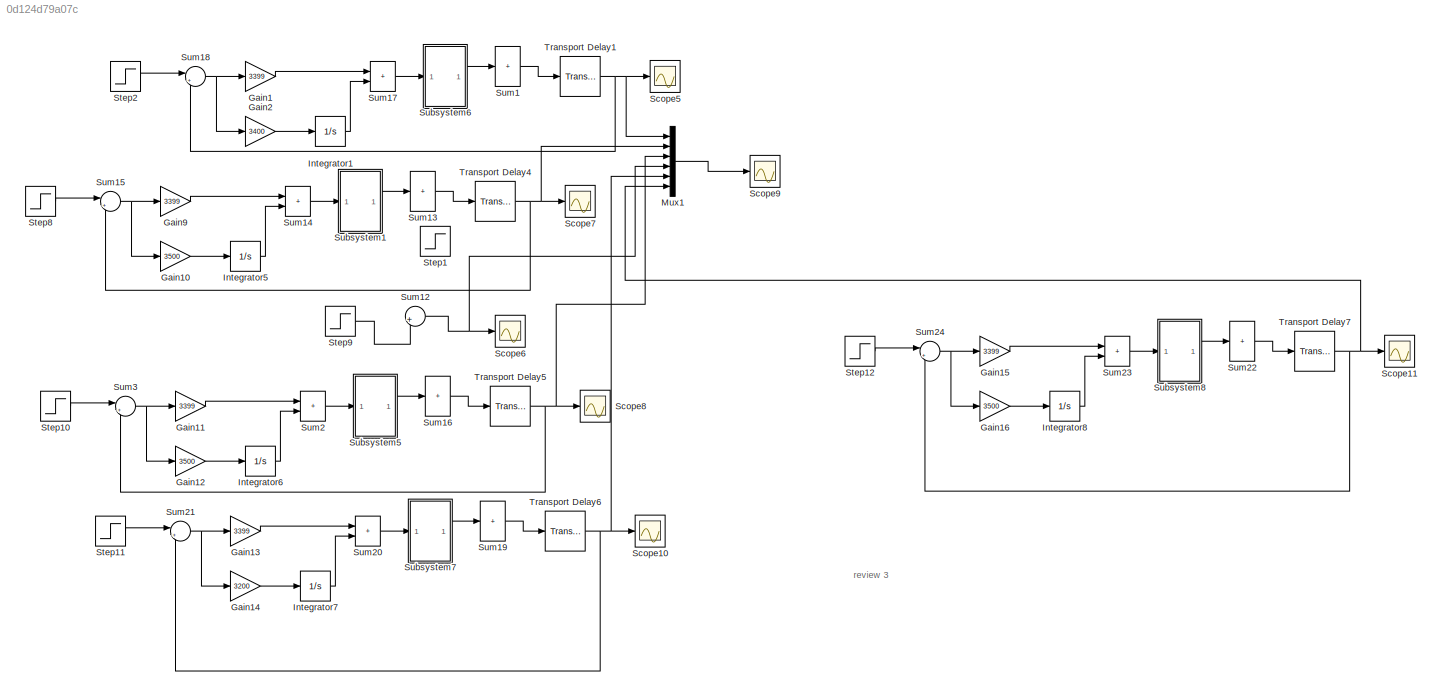
MODEL slx_0d124d79a07c
KIND model
CONFIG AbsTol = auto
CONFIG EnableMultiTasking = off
CONFIG FixedStep = auto
CONFIG MaxStep = auto
CONFIG MinStep = auto
CONFIG RelTol = 1e-3
CONFIG SampleTimeConstraint = Unconstrained
CONFIG SolverName = VariableStepAuto
CONFIG StartTime = 0.0
CONFIG StopTime = 2500
BLOCK [Gain] Gain1
  Gain = 3399
BLOCK [Gain] Gain10
  Gain = 3500
BLOCK [Gain] Gain11
  Gain = 3399
BLOCK [Gain] Gain12
  Gain = 3500
BLOCK [Gain] Gain13
  Gain = 3399
BLOCK [Gain] Gain14
  Gain = 3200
BLOCK [Gain] Gain15
  Gain = 3399
BLOCK [Gain] Gain16
  Gain = 3500
BLOCK [Gain] Gain2
  Gain = 3400
BLOCK [Gain] Gain9
  Gain = 3399
BLOCK [Integrator] Integrator1
  Ports = [1, 1]
BLOCK [Integrator] Integrator5
  Ports = [1, 1]
BLOCK [Integrator] Integrator6
  Ports = [1, 1]
BLOCK [Integrator] Integrator7
  Ports = [1, 1]
BLOCK [Integrator] Integrator8
  Ports = [1, 1]
BLOCK [Mux] Mux1
  DisplayOption = bar
  Inputs = 6
  Ports = [6, 1]
BLOCK [Scope] Scope10
  Floating = off
  NumInputPorts = 1
  Ports = [1]
  ScopeSpecificationString = Simulink.scopes.TimeScopeBlockCfg('CurrentConfiguration', extmgr.ConfigurationSet(extmgr.Configuration('Core','General UI',true,'FigureColor',[1 1 1]),extmgr.Configuration('Core','Source UI',true),extmgr.Configuration('Sources','WiredSimulink',true,'DataLoggingVariableName','ScopeData7'),extmgr.Configuration('Visuals','Time Domain',true,'SerializedDisplays',{struct('MinYLimReal','414.5067','MaxYLi...<+1611ch>
BLOCK [Scope] Scope11
  Floating = off
  NumInputPorts = 1
  Ports = [1]
  ScopeSpecificationString = Simulink.scopes.TimeScopeBlockCfg('CurrentConfiguration', extmgr.ConfigurationSet(extmgr.Configuration('Core','General UI',true,'FigureColor',[1 1 1]),extmgr.Configuration('Core','Source UI',true),extmgr.Configuration('Sources','WiredSimulink',true,'DataLoggingVariableName','ScopeData8'),extmgr.Configuration('Visuals','Time Domain',true,'SerializedDisplays',{struct('MinYLimReal','414.52429','MaxYL...<+1615ch>
BLOCK [Scope] Scope5
  Floating = off
  NumInputPorts = 1
  Ports = [1]
  ScopeSpecificationString = Simulink.scopes.TimeScopeBlockCfg('CurrentConfiguration', extmgr.ConfigurationSet(extmgr.Configuration('Core','General UI',true,'FigureColor',[1 1 1]),extmgr.Configuration('Core','Source UI',true),extmgr.Configuration('Sources','WiredSimulink',true,'DataLoggingVariableName','ScopeData2'),extmgr.Configuration('Visuals','Time Domain',true,'SerializedDisplays',{struct('MinYLimReal','413.8806','MaxYLi...<+1585ch>
BLOCK [Scope] Scope6
  Floating = off
  NumInputPorts = 1
  Ports = [1]
  ScopeSpecificationString = Simulink.scopes.TimeScopeBlockCfg('CurrentConfiguration', extmgr.ConfigurationSet(extmgr.Configuration('Core','General UI',true),extmgr.Configuration('Core','Source UI',true),extmgr.Configuration('Sources','WiredSimulink',true,'DataLoggingVariableName','ScopeData3'),extmgr.Configuration('Visuals','Time Domain',true,'SerializedDisplays',{struct('MinYLimReal','414.625','MaxYLimReal','418.375','YLabe...<+1362ch>
BLOCK [Scope] Scope7
  Floating = off
  NumInputPorts = 1
  Ports = [1]
  ScopeSpecificationString = Simulink.scopes.TimeScopeBlockCfg('CurrentConfiguration', extmgr.ConfigurationSet(extmgr.Configuration('Core','General UI',true,'FigureColor',[1 1 1]),extmgr.Configuration('Core','Source UI',true),extmgr.Configuration('Sources','WiredSimulink',true,'DataLoggingVariableName','ScopeData4'),extmgr.Configuration('Visuals','Time Domain',true,'SerializedDisplays',{struct('MinYLimReal','417.55907','MaxYL...<+1590ch>
BLOCK [Scope] Scope8
  Floating = off
  NumInputPorts = 1
  Ports = [1]
  ScopeSpecificationString = Simulink.scopes.TimeScopeBlockCfg('CurrentConfiguration', extmgr.ConfigurationSet(extmgr.Configuration('Core','General UI',true,'FigureColor',[1 1 1]),extmgr.Configuration('Core','Source UI',true),extmgr.Configuration('Sources','WiredSimulink',true,'DataLoggingVariableName','ScopeData5'),extmgr.Configuration('Visuals','Time Domain',true,'SerializedDisplays',{struct('MinYLimReal','414.40204','MaxYL...<+1615ch>
BLOCK [Scope] Scope9
  Floating = off
  NumInputPorts = 1
  Ports = [1]
  ScopeSpecificationString = Simulink.scopes.TimeScopeBlockCfg('CurrentConfiguration', extmgr.ConfigurationSet(extmgr.Configuration('Core','General UI',true),extmgr.Configuration('Core','Source UI',true),extmgr.Configuration('Sources','WiredSimulink',true,'DataLoggingVariableName','ScopeData6'),extmgr.Configuration('Visuals','Time Domain',true,'SerializedDisplays',{struct('MinYLimReal','414.39237','MaxYLimReal','420.25815','Y...<+1544ch>
BLOCK [Step] Step1
  After = -0.2
  SampleTime = 0
  Time = 400
BLOCK [Step] Step10
  After = 418
  Before = 415
  SampleTime = 0
  Time = 70
BLOCK [Step] Step11
  After = 418
  Before = 415
  SampleTime = 0
  Time = 70
BLOCK [Step] Step12
  After = 418
  Before = 415
  SampleTime = 0
  Time = 70
BLOCK [Step] Step2
  After = 418
  Before = 415
  SampleTime = 0
  Time = 70
BLOCK [Step] Step8
  After = 418
  Before = 415
  SampleTime = 0
  Time = 70
BLOCK [Step] Step9
  After = 418
  Before = 415
  SampleTime = 0
  Time = 70
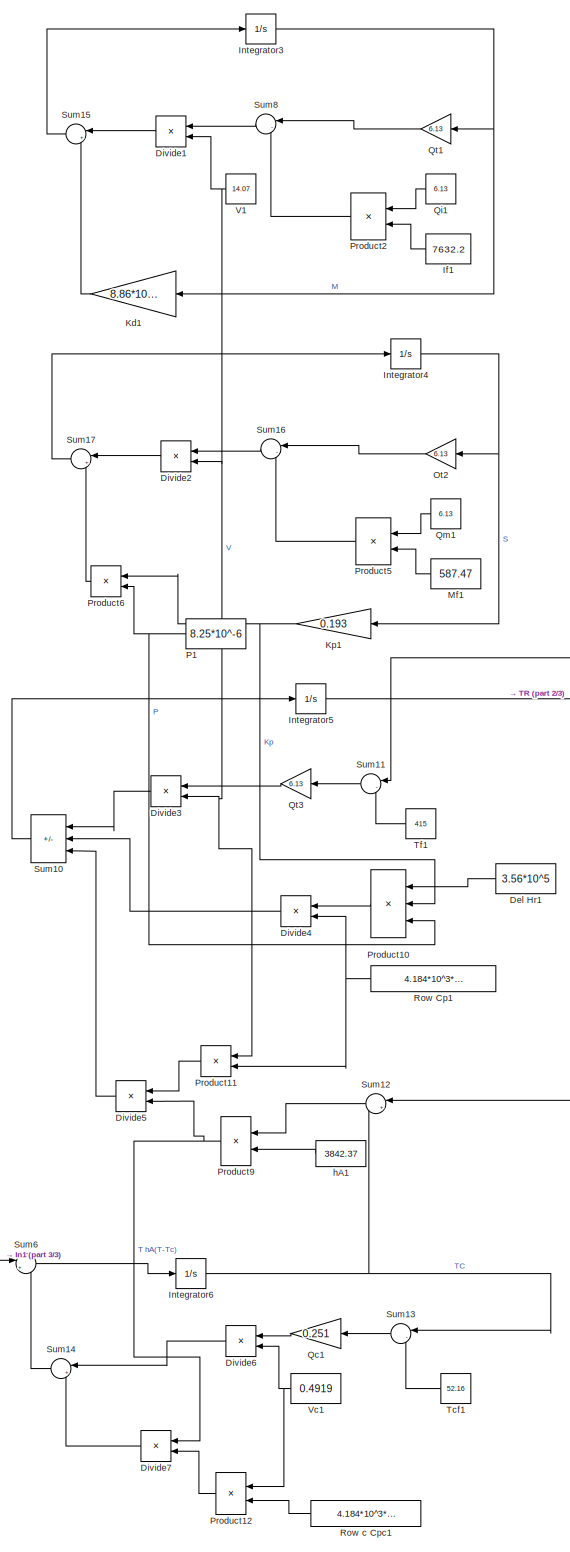
[diagram: Subsystem1 - part 1/3, center side, full height]
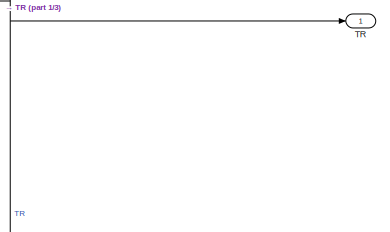
[diagram: Subsystem1 - part 2/3, middle right region]
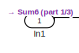
[diagram: Subsystem1 - part 3/3, bottom left region]
BLOCK [SubSystem] Subsystem1
  Ports = [1, 1]
  RequestExecContextInheritance = off
BLOCK [Constant] Subsystem1/Del Hr1
  NameLocation = top
  Value = 3.56*10^5
BLOCK [Product] Subsystem1/Divide1
  Inputs = */
  NameLocation = top
  Ports = [2, 1]
BLOCK [Product] Subsystem1/Divide2
  Inputs = */
  NameLocation = top
  Ports = [2, 1]
BLOCK [Product] Subsystem1/Divide3
  Inputs = */
  NameLocation = top
  Ports = [2, 1]
BLOCK [Product] Subsystem1/Divide4
  Inputs = */
  NameLocation = top
  Ports = [2, 1]
BLOCK [Product] Subsystem1/Divide5
  Inputs = /*
  NameLocation = top
  Ports = [2, 1]
BLOCK [Product] Subsystem1/Divide6
  Inputs = */
  NameLocation = top
  Ports = [2, 1]
BLOCK [Product] Subsystem1/Divide7
  Inputs = */
  NameLocation = top
  Ports = [2, 1]
BLOCK [Constant] Subsystem1/If1
  NameLocation = top
  Value = 7632.2
BLOCK [Inport] Subsystem1/In1
BLOCK [Integrator] Subsystem1/Integrator3
  InitialCondition = 7632.2
  Ports = [1, 1]
BLOCK [Integrator] Subsystem1/Integrator4
  InitialCondition = 587.47
  Ports = [1, 1]
BLOCK [Integrator] Subsystem1/Integrator5
  InitialCondition = 415
  Ports = [1, 1]
BLOCK [Integrator] Subsystem1/Integrator6
  InitialCondition = 326
  Ports = [1, 1]
BLOCK [Gain] Subsystem1/Kd1
  Gain = 8.86*10^-20
  NameLocation = top
BLOCK [Gain] Subsystem1/Kp1
  Gain = 0.193
  NameLocation = top
BLOCK [Constant] Subsystem1/Mf1
  NameLocation = top
  Value = 587.47
BLOCK [Gain] Subsystem1/Ot2
  Gain = 6.13
  NameLocation = top
BLOCK [Constant] Subsystem1/P1
  NameLocation = top
  Value = 8.25*10^-6
BLOCK [Product] Subsystem1/Product10
  Inputs = 3
  NameLocation = top
  Ports = [3, 1]
BLOCK [Product] Subsystem1/Product11
  NameLocation = top
  Ports = [2, 1]
BLOCK [Product] Subsystem1/Product12
  NameLocation = top
  Ports = [2, 1]
BLOCK [Product] Subsystem1/Product2
  NameLocation = top
  Ports = [2, 1]
BLOCK [Product] Subsystem1/Product5
  NameLocation = top
  Ports = [2, 1]
BLOCK [Product] Subsystem1/Product6
  NameLocation = top
  Ports = [2, 1]
BLOCK [Product] Subsystem1/Product9
  NameLocation = top
  Ports = [2, 1]
BLOCK [Gain] Subsystem1/Qc1
  Gain = 0.251
  NameLocation = top
BLOCK [Constant] Subsystem1/Qi1
  NameLocation = top
  Value = 6.13
BLOCK [Constant] Subsystem1/Qm1
  NameLocation = top
  Value = 6.13
BLOCK [Gain] Subsystem1/Qt1
  Gain = 6.13
  NameLocation = top
BLOCK [Gain] Subsystem1/Qt3
  Gain = 6.13
  NameLocation = top
BLOCK [Constant] Subsystem1/Row Cp1
  NameLocation = top
  Value = 4.184*10^3*858.085
BLOCK [Constant] Subsystem1/Row c Cpc1
  NameLocation = top
  Value = 4.184*10^3*858.085
BLOCK [Sum] Subsystem1/Sum10
  IconShape = rectangular
  Inputs = |++-
  NameLocation = top
  Ports = [3, 1]
BLOCK [Sum] Subsystem1/Sum11
  Inputs = |-+
  NameLocation = top
  Ports = [2, 1]
BLOCK [Sum] Subsystem1/Sum12
  Inputs = |+-
  NameLocation = top
  Ports = [2, 1]
BLOCK [Sum] Subsystem1/Sum13
  Inputs = |-+
  NameLocation = top
  Ports = [2, 1]
BLOCK [Sum] Subsystem1/Sum14
  Inputs = |++
  NameLocation = top
  Ports = [2, 1]
BLOCK [Sum] Subsystem1/Sum15
  Inputs = |+-
  NameLocation = top
  Ports = [2, 1]
BLOCK [Sum] Subsystem1/Sum16
  Inputs = |-+
  NameLocation = top
  Ports = [2, 1]
BLOCK [Sum] Subsystem1/Sum17
  Inputs = |+-
  NameLocation = top
  Ports = [2, 1]
BLOCK [Sum] Subsystem1/Sum6
  Inputs = |++
  Ports = [2, 1]
BLOCK [Sum] Subsystem1/Sum8
  Inputs = |-+
  NameLocation = top
  Ports = [2, 1]
BLOCK [Outport] Subsystem1/TR
BLOCK [Constant] Subsystem1/Tcf1
  NameLocation = top
  Value = 52.16
BLOCK [Constant] Subsystem1/Tf1
  NameLocation = top
  Value = 415
BLOCK [Constant] Subsystem1/V1
  NameLocation = top
  Value = 14.07
BLOCK [Constant] Subsystem1/Vc1
  NameLocation = top
  Value = 0.4919
BLOCK [Constant] Subsystem1/hA1
  NameLocation = top
  Value = 3842.37
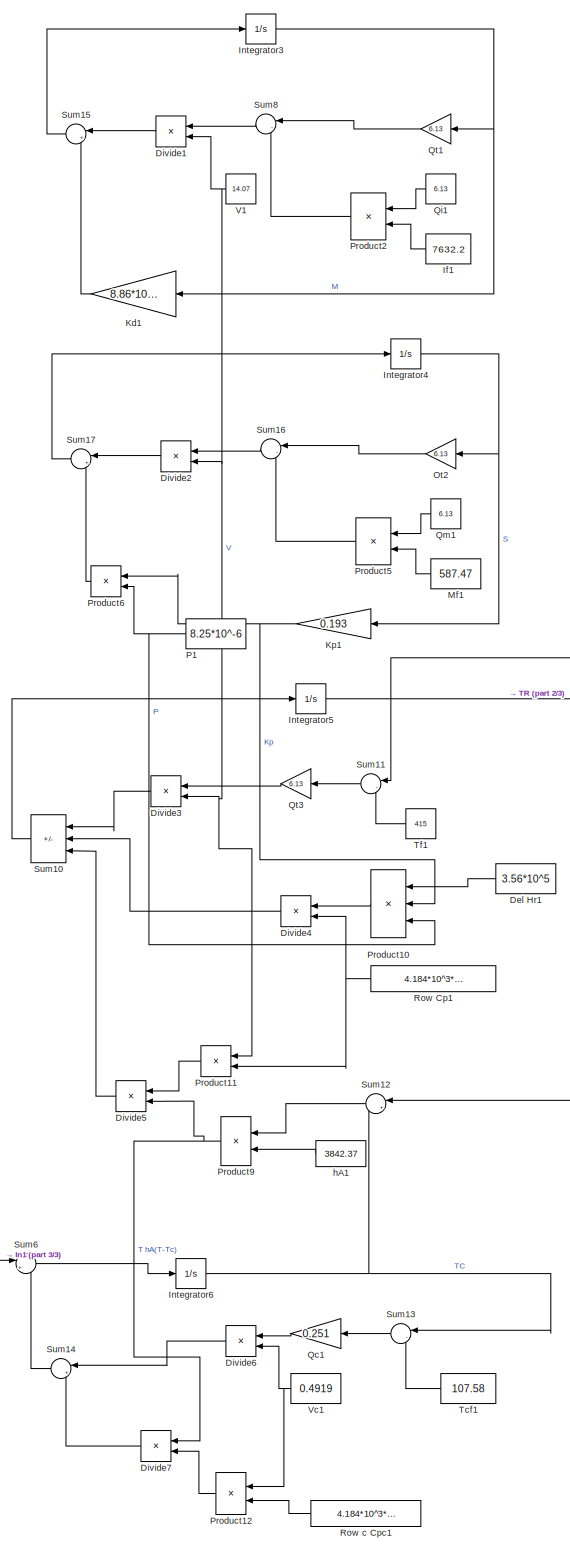
[diagram: Subsystem5 - part 1/3, center side, full height]
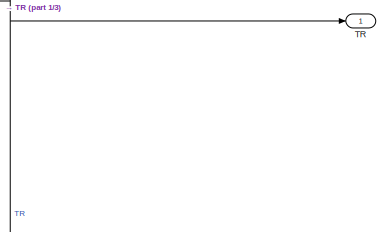
[diagram: Subsystem5 - part 2/3, middle right region]
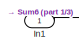
[diagram: Subsystem5 - part 3/3, bottom left region]
BLOCK [SubSystem] Subsystem5
  Ports = [1, 1]
  RequestExecContextInheritance = off
BLOCK [Constant] Subsystem5/Del Hr1
  NameLocation = top
  Value = 3.56*10^5
BLOCK [Product] Subsystem5/Divide1
  Inputs = */
  NameLocation = top
  Ports = [2, 1]
BLOCK [Product] Subsystem5/Divide2
  Inputs = */
  NameLocation = top
  Ports = [2, 1]
BLOCK [Product] Subsystem5/Divide3
  Inputs = */
  NameLocation = top
  Ports = [2, 1]
BLOCK [Product] Subsystem5/Divide4
  Inputs = */
  NameLocation = top
  Ports = [2, 1]
BLOCK [Product] Subsystem5/Divide5
  Inputs = /*
  NameLocation = top
  Ports = [2, 1]
BLOCK [Product] Subsystem5/Divide6
  Inputs = */
  NameLocation = top
  Ports = [2, 1]
BLOCK [Product] Subsystem5/Divide7
  Inputs = */
  NameLocation = top
  Ports = [2, 1]
BLOCK [Constant] Subsystem5/If1
  NameLocation = top
  Value = 7632.2
BLOCK [Inport] Subsystem5/In1
BLOCK [Integrator] Subsystem5/Integrator3
  InitialCondition = 7632.2
  Ports = [1, 1]
BLOCK [Integrator] Subsystem5/Integrator4
  InitialCondition = 587.47
  Ports = [1, 1]
BLOCK [Integrator] Subsystem5/Integrator5
  InitialCondition = 415
  Ports = [1, 1]
BLOCK [Integrator] Subsystem5/Integrator6
  InitialCondition = 326
  Ports = [1, 1]
BLOCK [Gain] Subsystem5/Kd1
  Gain = 8.86*10^-20
  NameLocation = top
BLOCK [Gain] Subsystem5/Kp1
  Gain = 0.193
  NameLocation = top
BLOCK [Constant] Subsystem5/Mf1
  NameLocation = top
  Value = 587.47
BLOCK [Gain] Subsystem5/Ot2
  Gain = 6.13
  NameLocation = top
BLOCK [Constant] Subsystem5/P1
  NameLocation = top
  Value = 8.25*10^-6
BLOCK [Product] Subsystem5/Product10
  Inputs = 3
  NameLocation = top
  Ports = [3, 1]
BLOCK [Product] Subsystem5/Product11
  NameLocation = top
  Ports = [2, 1]
BLOCK [Product] Subsystem5/Product12
  NameLocation = top
  Ports = [2, 1]
BLOCK [Product] Subsystem5/Product2
  NameLocation = top
  Ports = [2, 1]
BLOCK [Product] Subsystem5/Product5
  NameLocation = top
  Ports = [2, 1]
BLOCK [Product] Subsystem5/Product6
  NameLocation = top
  Ports = [2, 1]
BLOCK [Product] Subsystem5/Product9
  NameLocation = top
  Ports = [2, 1]
BLOCK [Gain] Subsystem5/Qc1
  Gain = 0.251
  NameLocation = top
BLOCK [Constant] Subsystem5/Qi1
  NameLocation = top
  Value = 6.13
BLOCK [Constant] Subsystem5/Qm1
  NameLocation = top
  Value = 6.13
BLOCK [Gain] Subsystem5/Qt1
  Gain = 6.13
  NameLocation = top
BLOCK [Gain] Subsystem5/Qt3
  Gain = 6.13
  NameLocation = top
BLOCK [Constant] Subsystem5/Row Cp1
  NameLocation = top
  Value = 4.184*10^3*858.085
BLOCK [Constant] Subsystem5/Row c Cpc1
  NameLocation = top
  Value = 4.184*10^3*858.085
BLOCK [Sum] Subsystem5/Sum10
  IconShape = rectangular
  Inputs = |++-
  NameLocation = top
  Ports = [3, 1]
BLOCK [Sum] Subsystem5/Sum11
  Inputs = |-+
  NameLocation = top
  Ports = [2, 1]
BLOCK [Sum] Subsystem5/Sum12
  Inputs = |+-
  NameLocation = top
  Ports = [2, 1]
BLOCK [Sum] Subsystem5/Sum13
  Inputs = |-+
  NameLocation = top
  Ports = [2, 1]
BLOCK [Sum] Subsystem5/Sum14
  Inputs = |++
  NameLocation = top
  Ports = [2, 1]
BLOCK [Sum] Subsystem5/Sum15
  Inputs = |+-
  NameLocation = top
  Ports = [2, 1]
BLOCK [Sum] Subsystem5/Sum16
  Inputs = |-+
  NameLocation = top
  Ports = [2, 1]
BLOCK [Sum] Subsystem5/Sum17
  Inputs = |+-
  NameLocation = top
  Ports = [2, 1]
BLOCK [Sum] Subsystem5/Sum6
  Inputs = |++
  Ports = [2, 1]
BLOCK [Sum] Subsystem5/Sum8
  Inputs = |-+
  NameLocation = top
  Ports = [2, 1]
BLOCK [Outport] Subsystem5/TR
BLOCK [Constant] Subsystem5/Tcf1
  NameLocation = top
  Value = 107.58
BLOCK [Constant] Subsystem5/Tf1
  NameLocation = top
  Value = 415
BLOCK [Constant] Subsystem5/V1
  NameLocation = top
  Value = 14.07
BLOCK [Constant] Subsystem5/Vc1
  NameLocation = top
  Value = 0.4919
BLOCK [Constant] Subsystem5/hA1
  NameLocation = top
  Value = 3842.37
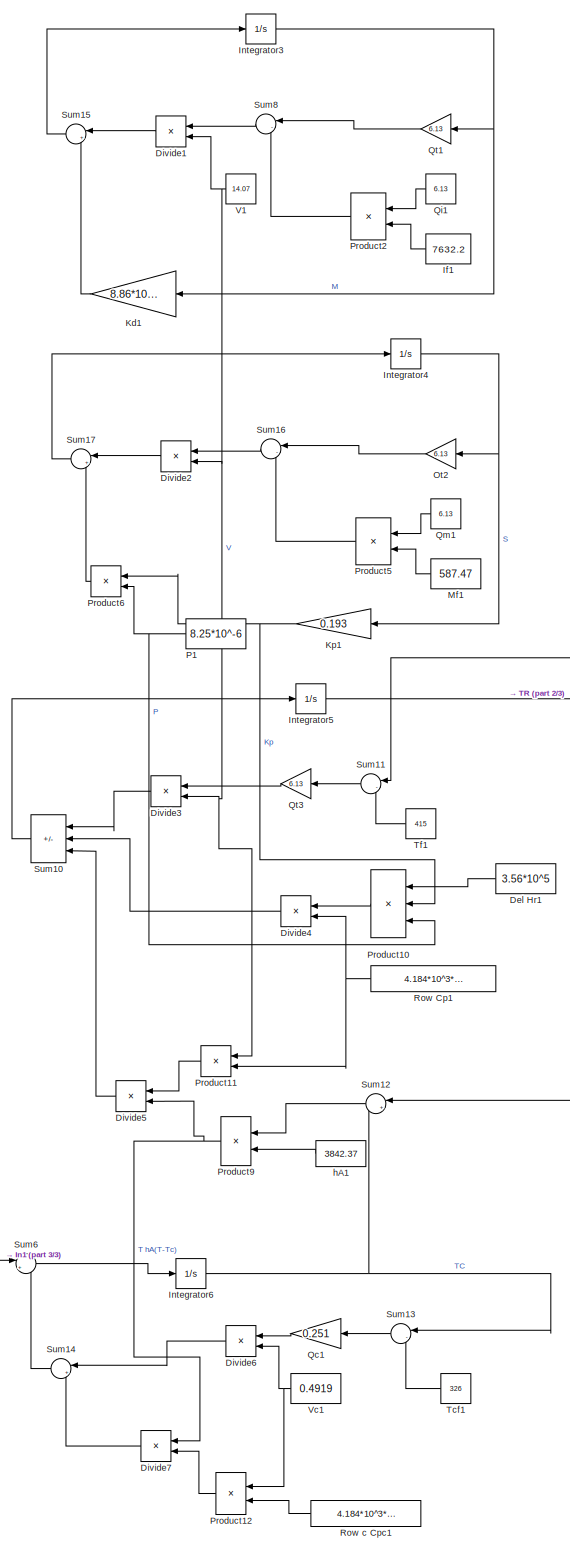
[diagram: Subsystem6 - part 1/3, center side, full height]
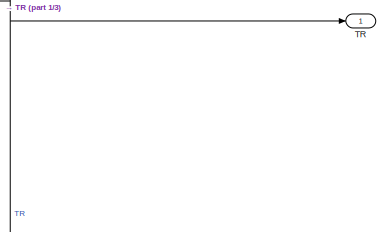
[diagram: Subsystem6 - part 2/3, middle right region]
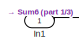
[diagram: Subsystem6 - part 3/3, bottom left region]
BLOCK [SubSystem] Subsystem6
  Ports = [1, 1]
  RequestExecContextInheritance = off
BLOCK [Constant] Subsystem6/Del Hr1
  NameLocation = top
  Value = 3.56*10^5
BLOCK [Product] Subsystem6/Divide1
  Inputs = */
  NameLocation = top
  Ports = [2, 1]
BLOCK [Product] Subsystem6/Divide2
  Inputs = */
  NameLocation = top
  Ports = [2, 1]
BLOCK [Product] Subsystem6/Divide3
  Inputs = */
  NameLocation = top
  Ports = [2, 1]
BLOCK [Product] Subsystem6/Divide4
  Inputs = */
  NameLocation = top
  Ports = [2, 1]
BLOCK [Product] Subsystem6/Divide5
  Inputs = /*
  NameLocation = top
  Ports = [2, 1]
BLOCK [Product] Subsystem6/Divide6
  Inputs = */
  NameLocation = top
  Ports = [2, 1]
BLOCK [Product] Subsystem6/Divide7
  Inputs = */
  NameLocation = top
  Ports = [2, 1]
BLOCK [Constant] Subsystem6/If1
  NameLocation = top
  Value = 7632.2
BLOCK [Inport] Subsystem6/In1
BLOCK [Integrator] Subsystem6/Integrator3
  InitialCondition = 7632.2
  Ports = [1, 1]
BLOCK [Integrator] Subsystem6/Integrator4
  InitialCondition = 587.47
  Ports = [1, 1]
BLOCK [Integrator] Subsystem6/Integrator5
  InitialCondition = 415
  Ports = [1, 1]
BLOCK [Integrator] Subsystem6/Integrator6
  InitialCondition = 326
  Ports = [1, 1]
BLOCK [Gain] Subsystem6/Kd1
  Gain = 8.86*10^-20
  NameLocation = top
BLOCK [Gain] Subsystem6/Kp1
  Gain = 0.193
  NameLocation = top
BLOCK [Constant] Subsystem6/Mf1
  NameLocation = top
  Value = 587.47
BLOCK [Gain] Subsystem6/Ot2
  Gain = 6.13
  NameLocation = top
BLOCK [Constant] Subsystem6/P1
  NameLocation = top
  Value = 8.25*10^-6
BLOCK [Product] Subsystem6/Product10
  Inputs = 3
  NameLocation = top
  Ports = [3, 1]
BLOCK [Product] Subsystem6/Product11
  NameLocation = top
  Ports = [2, 1]
BLOCK [Product] Subsystem6/Product12
  NameLocation = top
  Ports = [2, 1]
BLOCK [Product] Subsystem6/Product2
  NameLocation = top
  Ports = [2, 1]
BLOCK [Product] Subsystem6/Product5
  NameLocation = top
  Ports = [2, 1]
BLOCK [Product] Subsystem6/Product6
  NameLocation = top
  Ports = [2, 1]
BLOCK [Product] Subsystem6/Product9
  NameLocation = top
  Ports = [2, 1]
BLOCK [Gain] Subsystem6/Qc1
  Gain = 0.251
  NameLocation = top
BLOCK [Constant] Subsystem6/Qi1
  NameLocation = top
  Value = 6.13
BLOCK [Constant] Subsystem6/Qm1
  NameLocation = top
  Value = 6.13
BLOCK [Gain] Subsystem6/Qt1
  Gain = 6.13
  NameLocation = top
BLOCK [Gain] Subsystem6/Qt3
  Gain = 6.13
  NameLocation = top
BLOCK [Constant] Subsystem6/Row Cp1
  NameLocation = top
  Value = 4.184*10^3*858.085
BLOCK [Constant] Subsystem6/Row c Cpc1
  NameLocation = top
  Value = 4.184*10^3*858.085
BLOCK [Sum] Subsystem6/Sum10
  IconShape = rectangular
  Inputs = |++-
  NameLocation = top
  Ports = [3, 1]
BLOCK [Sum] Subsystem6/Sum11
  Inputs = |-+
  NameLocation = top
  Ports = [2, 1]
BLOCK [Sum] Subsystem6/Sum12
  Inputs = |+-
  NameLocation = top
  Ports = [2, 1]
BLOCK [Sum] Subsystem6/Sum13
  Inputs = |-+
  NameLocation = top
  Ports = [2, 1]
BLOCK [Sum] Subsystem6/Sum14
  Inputs = |++
  NameLocation = top
  Ports = [2, 1]
BLOCK [Sum] Subsystem6/Sum15
  Inputs = |+-
  NameLocation = top
  Ports = [2, 1]
BLOCK [Sum] Subsystem6/Sum16
  Inputs = |-+
  NameLocation = top
  Ports = [2, 1]
BLOCK [Sum] Subsystem6/Sum17
  Inputs = |+-
  NameLocation = top
  Ports = [2, 1]
BLOCK [Sum] Subsystem6/Sum6
  Inputs = |++
  Ports = [2, 1]
BLOCK [Sum] Subsystem6/Sum8
  Inputs = |-+
  NameLocation = top
  Ports = [2, 1]
BLOCK [Outport] Subsystem6/TR
BLOCK [Constant] Subsystem6/Tcf1
  NameLocation = top
  Value = 326
BLOCK [Constant] Subsystem6/Tf1
  NameLocation = top
  Value = 415
BLOCK [Constant] Subsystem6/V1
  NameLocation = top
  Value = 14.07
BLOCK [Constant] Subsystem6/Vc1
  NameLocation = top
  Value = 0.4919
BLOCK [Constant] Subsystem6/hA1
  NameLocation = top
  Value = 3842.37
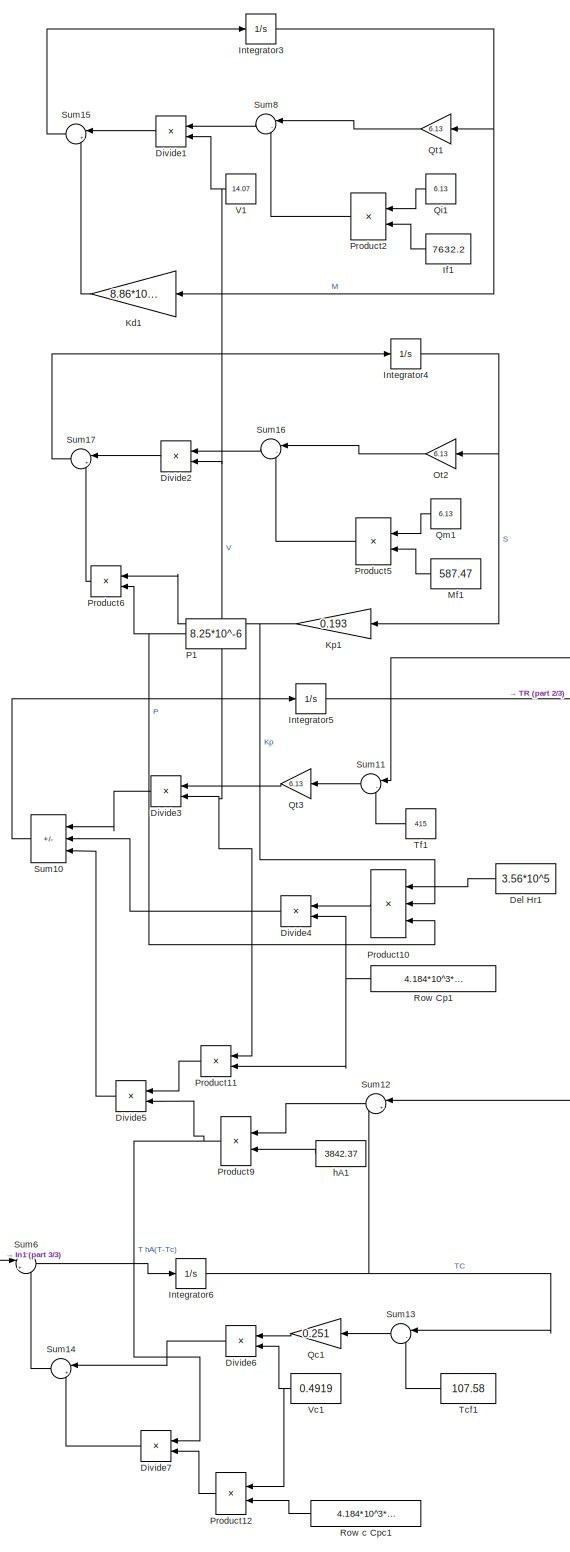
[diagram: Subsystem7 - part 1/3, center side, full height]
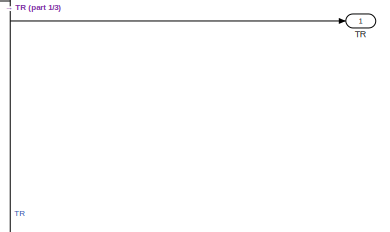
[diagram: Subsystem7 - part 2/3, middle right region]
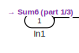
[diagram: Subsystem7 - part 3/3, bottom left region]
BLOCK [SubSystem] Subsystem7
  Ports = [1, 1]
  RequestExecContextInheritance = off
BLOCK [Constant] Subsystem7/Del Hr1
  NameLocation = top
  Value = 3.56*10^5
BLOCK [Product] Subsystem7/Divide1
  Inputs = */
  NameLocation = top
  Ports = [2, 1]
BLOCK [Product] Subsystem7/Divide2
  Inputs = */
  NameLocation = top
  Ports = [2, 1]
BLOCK [Product] Subsystem7/Divide3
  Inputs = */
  NameLocation = top
  Ports = [2, 1]
BLOCK [Product] Subsystem7/Divide4
  Inputs = */
  NameLocation = top
  Ports = [2, 1]
BLOCK [Product] Subsystem7/Divide5
  Inputs = /*
  NameLocation = top
  Ports = [2, 1]
BLOCK [Product] Subsystem7/Divide6
  Inputs = */
  NameLocation = top
  Ports = [2, 1]
BLOCK [Product] Subsystem7/Divide7
  Inputs = */
  NameLocation = top
  Ports = [2, 1]
BLOCK [Constant] Subsystem7/If1
  NameLocation = top
  Value = 7632.2
BLOCK [Inport] Subsystem7/In1
BLOCK [Integrator] Subsystem7/Integrator3
  InitialCondition = 7632.2
  Ports = [1, 1]
BLOCK [Integrator] Subsystem7/Integrator4
  InitialCondition = 587.47
  Ports = [1, 1]
BLOCK [Integrator] Subsystem7/Integrator5
  InitialCondition = 415
  Ports = [1, 1]
BLOCK [Integrator] Subsystem7/Integrator6
  InitialCondition = 326
  Ports = [1, 1]
BLOCK [Gain] Subsystem7/Kd1
  Gain = 8.86*10^-20
  NameLocation = top
BLOCK [Gain] Subsystem7/Kp1
  Gain = 0.193
  NameLocation = top
BLOCK [Constant] Subsystem7/Mf1
  NameLocation = top
  Value = 587.47
BLOCK [Gain] Subsystem7/Ot2
  Gain = 6.13
  NameLocation = top
BLOCK [Constant] Subsystem7/P1
  NameLocation = top
  Value = 8.25*10^-6
BLOCK [Product] Subsystem7/Product10
  Inputs = 3
  NameLocation = top
  Ports = [3, 1]
BLOCK [Product] Subsystem7/Product11
  NameLocation = top
  Ports = [2, 1]
BLOCK [Product] Subsystem7/Product12
  NameLocation = top
  Ports = [2, 1]
BLOCK [Product] Subsystem7/Product2
  NameLocation = top
  Ports = [2, 1]
BLOCK [Product] Subsystem7/Product5
  NameLocation = top
  Ports = [2, 1]
BLOCK [Product] Subsystem7/Product6
  NameLocation = top
  Ports = [2, 1]
BLOCK [Product] Subsystem7/Product9
  NameLocation = top
  Ports = [2, 1]
BLOCK [Gain] Subsystem7/Qc1
  Gain = 0.251
  NameLocation = top
BLOCK [Constant] Subsystem7/Qi1
  NameLocation = top
  Value = 6.13
BLOCK [Constant] Subsystem7/Qm1
  NameLocation = top
  Value = 6.13
BLOCK [Gain] Subsystem7/Qt1
  Gain = 6.13
  NameLocation = top
BLOCK [Gain] Subsystem7/Qt3
  Gain = 6.13
  NameLocation = top
BLOCK [Constant] Subsystem7/Row Cp1
  NameLocation = top
  Value = 4.184*10^3*858.085
BLOCK [Constant] Subsystem7/Row c Cpc1
  NameLocation = top
  Value = 4.184*10^3*858.085
BLOCK [Sum] Subsystem7/Sum10
  IconShape = rectangular
  Inputs = |++-
  NameLocation = top
  Ports = [3, 1]
BLOCK [Sum] Subsystem7/Sum11
  Inputs = |-+
  NameLocation = top
  Ports = [2, 1]
BLOCK [Sum] Subsystem7/Sum12
  Inputs = |+-
  NameLocation = top
  Ports = [2, 1]
BLOCK [Sum] Subsystem7/Sum13
  Inputs = |-+
  NameLocation = top
  Ports = [2, 1]
BLOCK [Sum] Subsystem7/Sum14
  Inputs = |++
  NameLocation = top
  Ports = [2, 1]
BLOCK [Sum] Subsystem7/Sum15
  Inputs = |+-
  NameLocation = top
  Ports = [2, 1]
BLOCK [Sum] Subsystem7/Sum16
  Inputs = |-+
  NameLocation = top
  Ports = [2, 1]
BLOCK [Sum] Subsystem7/Sum17
  Inputs = |+-
  NameLocation = top
  Ports = [2, 1]
BLOCK [Sum] Subsystem7/Sum6
  Inputs = |++
  Ports = [2, 1]
BLOCK [Sum] Subsystem7/Sum8
  Inputs = |-+
  NameLocation = top
  Ports = [2, 1]
BLOCK [Outport] Subsystem7/TR
BLOCK [Constant] Subsystem7/Tcf1
  NameLocation = top
  Value = 107.58
BLOCK [Constant] Subsystem7/Tf1
  NameLocation = top
  Value = 415
BLOCK [Constant] Subsystem7/V1
  NameLocation = top
  Value = 14.07
BLOCK [Constant] Subsystem7/Vc1
  NameLocation = top
  Value = 0.4919
BLOCK [Constant] Subsystem7/hA1
  NameLocation = top
  Value = 3842.37
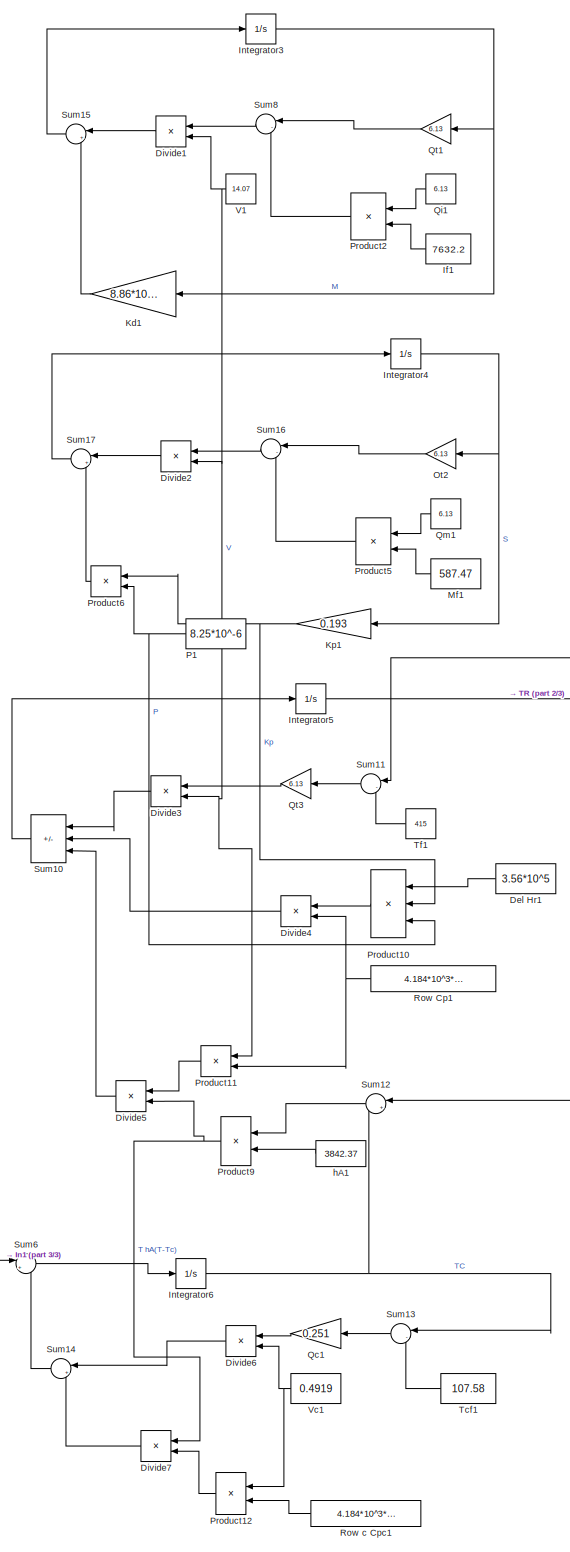
[diagram: Subsystem8 - part 1/3, center side, full height]
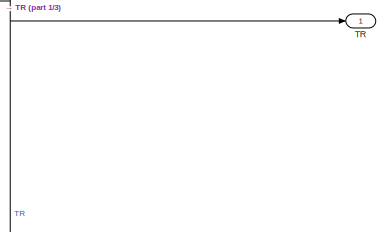
[diagram: Subsystem8 - part 2/3, middle right region]
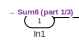
[diagram: Subsystem8 - part 3/3, bottom left region]
BLOCK [SubSystem] Subsystem8
  Ports = [1, 1]
  RequestExecContextInheritance = off
BLOCK [Constant] Subsystem8/Del Hr1
  NameLocation = top
  Value = 3.56*10^5
BLOCK [Product] Subsystem8/Divide1
  Inputs = */
  NameLocation = top
  Ports = [2, 1]
BLOCK [Product] Subsystem8/Divide2
  Inputs = */
  NameLocation = top
  Ports = [2, 1]
BLOCK [Product] Subsystem8/Divide3
  Inputs = */
  NameLocation = top
  Ports = [2, 1]
BLOCK [Product] Subsystem8/Divide4
  Inputs = */
  NameLocation = top
  Ports = [2, 1]
BLOCK [Product] Subsystem8/Divide5
  Inputs = /*
  NameLocation = top
  Ports = [2, 1]
BLOCK [Product] Subsystem8/Divide6
  Inputs = */
  NameLocation = top
  Ports = [2, 1]
BLOCK [Product] Subsystem8/Divide7
  Inputs = */
  NameLocation = top
  Ports = [2, 1]
BLOCK [Constant] Subsystem8/If1
  NameLocation = top
  Value = 7632.2
BLOCK [Inport] Subsystem8/In1
BLOCK [Integrator] Subsystem8/Integrator3
  InitialCondition = 7632.2
  Ports = [1, 1]
BLOCK [Integrator] Subsystem8/Integrator4
  InitialCondition = 587.47
  Ports = [1, 1]
BLOCK [Integrator] Subsystem8/Integrator5
  InitialCondition = 415
  Ports = [1, 1]
BLOCK [Integrator] Subsystem8/Integrator6
  InitialCondition = 326
  Ports = [1, 1]
BLOCK [Gain] Subsystem8/Kd1
  Gain = 8.86*10^-20
  NameLocation = top
BLOCK [Gain] Subsystem8/Kp1
  Gain = 0.193
  NameLocation = top
BLOCK [Constant] Subsystem8/Mf1
  NameLocation = top
  Value = 587.47
BLOCK [Gain] Subsystem8/Ot2
  Gain = 6.13
  NameLocation = top
BLOCK [Constant] Subsystem8/P1
  NameLocation = top
  Value = 8.25*10^-6
BLOCK [Product] Subsystem8/Product10
  Inputs = 3
  NameLocation = top
  Ports = [3, 1]
BLOCK [Product] Subsystem8/Product11
  NameLocation = top
  Ports = [2, 1]
BLOCK [Product] Subsystem8/Product12
  NameLocation = top
  Ports = [2, 1]
BLOCK [Product] Subsystem8/Product2
  NameLocation = top
  Ports = [2, 1]
BLOCK [Product] Subsystem8/Product5
  NameLocation = top
  Ports = [2, 1]
BLOCK [Product] Subsystem8/Product6
  NameLocation = top
  Ports = [2, 1]
BLOCK [Product] Subsystem8/Product9
  NameLocation = top
  Ports = [2, 1]
BLOCK [Gain] Subsystem8/Qc1
  Gain = 0.251
  NameLocation = top
BLOCK [Constant] Subsystem8/Qi1
  NameLocation = top
  Value = 6.13
BLOCK [Constant] Subsystem8/Qm1
  NameLocation = top
  Value = 6.13
BLOCK [Gain] Subsystem8/Qt1
  Gain = 6.13
  NameLocation = top
BLOCK [Gain] Subsystem8/Qt3
  Gain = 6.13
  NameLocation = top
BLOCK [Constant] Subsystem8/Row Cp1
  NameLocation = top
  Value = 4.184*10^3*858.085
BLOCK [Constant] Subsystem8/Row c Cpc1
  NameLocation = top
  Value = 4.184*10^3*858.085
BLOCK [Sum] Subsystem8/Sum10
  IconShape = rectangular
  Inputs = |++-
  NameLocation = top
  Ports = [3, 1]
BLOCK [Sum] Subsystem8/Sum11
  Inputs = |-+
  NameLocation = top
  Ports = [2, 1]
BLOCK [Sum] Subsystem8/Sum12
  Inputs = |+-
  NameLocation = top
  Ports = [2, 1]
BLOCK [Sum] Subsystem8/Sum13
  Inputs = |-+
  NameLocation = top
  Ports = [2, 1]
BLOCK [Sum] Subsystem8/Sum14
  Inputs = |++
  NameLocation = top
  Ports = [2, 1]
BLOCK [Sum] Subsystem8/Sum15
  Inputs = |+-
  NameLocation = top
  Ports = [2, 1]
BLOCK [Sum] Subsystem8/Sum16
  Inputs = |-+
  NameLocation = top
  Ports = [2, 1]
BLOCK [Sum] Subsystem8/Sum17
  Inputs = |+-
  NameLocation = top
  Ports = [2, 1]
BLOCK [Sum] Subsystem8/Sum6
  Inputs = |++
  Ports = [2, 1]
BLOCK [Sum] Subsystem8/Sum8
  Inputs = |-+
  NameLocation = top
  Ports = [2, 1]
BLOCK [Outport] Subsystem8/TR
BLOCK [Constant] Subsystem8/Tcf1
  NameLocation = top
  Value = 107.58
BLOCK [Constant] Subsystem8/Tf1
  NameLocation = top
  Value = 415
BLOCK [Constant] Subsystem8/V1
  NameLocation = top
  Value = 14.07
BLOCK [Constant] Subsystem8/Vc1
  NameLocation = top
  Value = 0.4919
BLOCK [Constant] Subsystem8/hA1
  NameLocation = top
  Value = 3842.37
BLOCK [Sum] Sum1
  IconShape = rectangular
  Inputs = |+
  Ports = [1, 1]
BLOCK [Sum] Sum12
  Inputs = |+
  Ports = [1, 1]
BLOCK [Sum] Sum13
  IconShape = rectangular
  Inputs = |+
  Ports = [1, 1]
BLOCK [Sum] Sum14
  IconShape = rectangular
  Inputs = |++
  Ports = [2, 1]
BLOCK [Sum] Sum15
  Inputs = |+-
  Ports = [2, 1]
BLOCK [Sum] Sum16
  IconShape = rectangular
  Inputs = |+
  Ports = [1, 1]
BLOCK [Sum] Sum17
  IconShape = rectangular
  Inputs = |++
  Ports = [2, 1]
BLOCK [Sum] Sum18
  Inputs = |+-
  Ports = [2, 1]
BLOCK [Sum] Sum19
  IconShape = rectangular
  Inputs = |+
  Ports = [1, 1]
BLOCK [Sum] Sum2
  IconShape = rectangular
  Inputs = |++
  Ports = [2, 1]
BLOCK [Sum] Sum20
  IconShape = rectangular
  Inputs = |++
  Ports = [2, 1]
BLOCK [Sum] Sum21
  Inputs = |+-
  Ports = [2, 1]
BLOCK [Sum] Sum22
  IconShape = rectangular
  Inputs = |+
  Ports = [1, 1]
BLOCK [Sum] Sum23
  IconShape = rectangular
  Inputs = |++
  Ports = [2, 1]
BLOCK [Sum] Sum24
  Inputs = |+-
  Ports = [2, 1]
BLOCK [Sum] Sum3
  Inputs = |+-
  Ports = [2, 1]
BLOCK [TransportDelay] Transport Delay1
  DelayTime = 0
  Ports = [1, 1]
BLOCK [TransportDelay] Transport Delay4
  DelayTime = 0
  Ports = [1, 1]
BLOCK [TransportDelay] Transport Delay5
  DelayTime = 0
  Ports = [1, 1]
BLOCK [TransportDelay] Transport Delay6
  DelayTime = 0
  Ports = [1, 1]
BLOCK [TransportDelay] Transport Delay7
  DelayTime = 0
  Ports = [1, 1]
ANNOTATION (root): review 3
LINE Gain10:1 -> Integrator5:1
LINE Gain11:1 -> Sum2:1
LINE Gain12:1 -> Integrator6:1
LINE Gain13:1 -> Sum20:1
LINE Gain14:1 -> Integrator7:1
LINE Gain15:1 -> Sum23:1
LINE Gain16:1 -> Integrator8:1
LINE Gain1:1 -> Sum17:1
LINE Gain2:1 -> Integrator1:1
LINE Gain9:1 -> Sum14:1
LINE Integrator1:1 -> Sum17:2
LINE Integrator5:1 -> Sum14:2
LINE Integrator6:1 -> Sum2:2
LINE Integrator7:1 -> Sum20:2
LINE Integrator8:1 -> Sum23:2
LINE Mux1:1 -> Scope9:1
LINE Step10:1 -> Sum3:1
LINE Step11:1 -> Sum21:1
LINE Step12:1 -> Sum24:1
LINE Step2:1 -> Sum18:1
LINE Step8:1 -> Sum15:1
LINE Step9:1 -> Sum12:1
LINE Subsystem1/Del Hr1:1 -> Subsystem1/Product10:1
LINE Subsystem1/Divide1:1 -> Subsystem1/Sum15:1
LINE Subsystem1/Divide2:1 -> Subsystem1/Sum17:1
LINE Subsystem1/Divide3:1 -> Subsystem1/Sum10:1
LINE Subsystem1/Divide4:1 -> Subsystem1/Sum10:2
LINE Subsystem1/Divide5:1 -> Subsystem1/Sum10:3
LINE Subsystem1/Divide6:1 -> Subsystem1/Sum14:1
LINE Subsystem1/Divide7:1 -> Subsystem1/Sum14:2
LINE Subsystem1/If1:1 -> Subsystem1/Product2:2
LINE Subsystem1/In1:1 -> Subsystem1/Sum6:1
NET Subsystem1/Integrator3:1 -> Subsystem1/Kd1:1, Subsystem1/Qt1:1
NET Subsystem1/Integrator4:1 -> Subsystem1/Kp1:1, Subsystem1/Ot2:1
NET Subsystem1/Integrator5:1 -> Subsystem1/Sum11:1, Subsystem1/Sum12:1, Subsystem1/TR:1
NET Subsystem1/Integrator6:1 -> Subsystem1/Sum12:2, Subsystem1/Sum13:1
LINE Subsystem1/Kd1:1 -> Subsystem1/Sum15:2
NET Subsystem1/Kp1:1 -> Subsystem1/Product10:2, Subsystem1/Product6:1
LINE Subsystem1/Mf1:1 -> Subsystem1/Product5:2
LINE Subsystem1/Ot2:1 -> Subsystem1/Sum16:1
NET Subsystem1/P1:1 -> Subsystem1/Product10:3, Subsystem1/Product6:2
LINE Subsystem1/Product10:1 -> Subsystem1/Divide4:1
LINE Subsystem1/Product11:1 -> Subsystem1/Divide5:1
LINE Subsystem1/Product12:1 -> Subsystem1/Divide7:2
LINE Subsystem1/Product2:1 -> Subsystem1/Sum8:2
LINE Subsystem1/Product5:1 -> Subsystem1/Sum16:2
LINE Subsystem1/Product6:1 -> Subsystem1/Sum17:2
NET Subsystem1/Product9:1 -> Subsystem1/Divide5:2, Subsystem1/Divide7:1
LINE Subsystem1/Qc1:1 -> Subsystem1/Divide6:1
LINE Subsystem1/Qi1:1 -> Subsystem1/Product2:1
LINE Subsystem1/Qm1:1 -> Subsystem1/Product5:1
LINE Subsystem1/Qt1:1 -> Subsystem1/Sum8:1
LINE Subsystem1/Qt3:1 -> Subsystem1/Divide3:1
NET Subsystem1/Row Cp1:1 -> Subsystem1/Divide4:2, Subsystem1/Product11:2
LINE Subsystem1/Row c Cpc1:1 -> Subsystem1/Product12:2
LINE Subsystem1/Sum10:1 -> Subsystem1/Integrator5:1
LINE Subsystem1/Sum11:1 -> Subsystem1/Qt3:1
LINE Subsystem1/Sum12:1 -> Subsystem1/Product9:1
LINE Subsystem1/Sum13:1 -> Subsystem1/Qc1:1
LINE Subsystem1/Sum14:1 -> Subsystem1/Sum6:2
LINE Subsystem1/Sum15:1 -> Subsystem1/Integrator3:1
LINE Subsystem1/Sum16:1 -> Subsystem1/Divide2:1
LINE Subsystem1/Sum17:1 -> Subsystem1/Integrator4:1
LINE Subsystem1/Sum6:1 -> Subsystem1/Integrator6:1
LINE Subsystem1/Sum8:1 -> Subsystem1/Divide1:1
LINE Subsystem1/Tcf1:1 -> Subsystem1/Sum13:2
LINE Subsystem1/Tf1:1 -> Subsystem1/Sum11:2
NET Subsystem1/V1:1 -> Subsystem1/Divide1:2, Subsystem1/Divide2:2, Subsystem1/Divide3:2, Subsystem1/Product11:1
NET Subsystem1/Vc1:1 -> Subsystem1/Divide6:2, Subsystem1/Product12:1
LINE Subsystem1/hA1:1 -> Subsystem1/Product9:2
LINE Subsystem1:1 -> Sum13:1
LINE Subsystem5/Del Hr1:1 -> Subsystem5/Product10:1
LINE Subsystem5/Divide1:1 -> Subsystem5/Sum15:1
LINE Subsystem5/Divide2:1 -> Subsystem5/Sum17:1
LINE Subsystem5/Divide3:1 -> Subsystem5/Sum10:1
LINE Subsystem5/Divide4:1 -> Subsystem5/Sum10:2
LINE Subsystem5/Divide5:1 -> Subsystem5/Sum10:3
LINE Subsystem5/Divide6:1 -> Subsystem5/Sum14:1
LINE Subsystem5/Divide7:1 -> Subsystem5/Sum14:2
LINE Subsystem5/If1:1 -> Subsystem5/Product2:2
LINE Subsystem5/In1:1 -> Subsystem5/Sum6:1
NET Subsystem5/Integrator3:1 -> Subsystem5/Kd1:1, Subsystem5/Qt1:1
NET Subsystem5/Integrator4:1 -> Subsystem5/Kp1:1, Subsystem5/Ot2:1
NET Subsystem5/Integrator5:1 -> Subsystem5/Sum11:1, Subsystem5/Sum12:1, Subsystem5/TR:1
NET Subsystem5/Integrator6:1 -> Subsystem5/Sum12:2, Subsystem5/Sum13:1
LINE Subsystem5/Kd1:1 -> Subsystem5/Sum15:2
NET Subsystem5/Kp1:1 -> Subsystem5/Product10:2, Subsystem5/Product6:1
LINE Subsystem5/Mf1:1 -> Subsystem5/Product5:2
LINE Subsystem5/Ot2:1 -> Subsystem5/Sum16:1
NET Subsystem5/P1:1 -> Subsystem5/Product10:3, Subsystem5/Product6:2
LINE Subsystem5/Product10:1 -> Subsystem5/Divide4:1
LINE Subsystem5/Product11:1 -> Subsystem5/Divide5:1
LINE Subsystem5/Product12:1 -> Subsystem5/Divide7:2
LINE Subsystem5/Product2:1 -> Subsystem5/Sum8:2
LINE Subsystem5/Product5:1 -> Subsystem5/Sum16:2
LINE Subsystem5/Product6:1 -> Subsystem5/Sum17:2
NET Subsystem5/Product9:1 -> Subsystem5/Divide5:2, Subsystem5/Divide7:1
LINE Subsystem5/Qc1:1 -> Subsystem5/Divide6:1
LINE Subsystem5/Qi1:1 -> Subsystem5/Product2:1
LINE Subsystem5/Qm1:1 -> Subsystem5/Product5:1
LINE Subsystem5/Qt1:1 -> Subsystem5/Sum8:1
LINE Subsystem5/Qt3:1 -> Subsystem5/Divide3:1
NET Subsystem5/Row Cp1:1 -> Subsystem5/Divide4:2, Subsystem5/Product11:2
LINE Subsystem5/Row c Cpc1:1 -> Subsystem5/Product12:2
LINE Subsystem5/Sum10:1 -> Subsystem5/Integrator5:1
LINE Subsystem5/Sum11:1 -> Subsystem5/Qt3:1
LINE Subsystem5/Sum12:1 -> Subsystem5/Product9:1
LINE Subsystem5/Sum13:1 -> Subsystem5/Qc1:1
LINE Subsystem5/Sum14:1 -> Subsystem5/Sum6:2
LINE Subsystem5/Sum15:1 -> Subsystem5/Integrator3:1
LINE Subsystem5/Sum16:1 -> Subsystem5/Divide2:1
LINE Subsystem5/Sum17:1 -> Subsystem5/Integrator4:1
LINE Subsystem5/Sum6:1 -> Subsystem5/Integrator6:1
LINE Subsystem5/Sum8:1 -> Subsystem5/Divide1:1
LINE Subsystem5/Tcf1:1 -> Subsystem5/Sum13:2
LINE Subsystem5/Tf1:1 -> Subsystem5/Sum11:2
NET Subsystem5/V1:1 -> Subsystem5/Divide1:2, Subsystem5/Divide2:2, Subsystem5/Divide3:2, Subsystem5/Product11:1
NET Subsystem5/Vc1:1 -> Subsystem5/Divide6:2, Subsystem5/Product12:1
LINE Subsystem5/hA1:1 -> Subsystem5/Product9:2
LINE Subsystem5:1 -> Sum16:1
LINE Subsystem6/Del Hr1:1 -> Subsystem6/Product10:1
LINE Subsystem6/Divide1:1 -> Subsystem6/Sum15:1
LINE Subsystem6/Divide2:1 -> Subsystem6/Sum17:1
LINE Subsystem6/Divide3:1 -> Subsystem6/Sum10:1
LINE Subsystem6/Divide4:1 -> Subsystem6/Sum10:2
LINE Subsystem6/Divide5:1 -> Subsystem6/Sum10:3
LINE Subsystem6/Divide6:1 -> Subsystem6/Sum14:1
LINE Subsystem6/Divide7:1 -> Subsystem6/Sum14:2
LINE Subsystem6/If1:1 -> Subsystem6/Product2:2
LINE Subsystem6/In1:1 -> Subsystem6/Sum6:1
NET Subsystem6/Integrator3:1 -> Subsystem6/Kd1:1, Subsystem6/Qt1:1
NET Subsystem6/Integrator4:1 -> Subsystem6/Kp1:1, Subsystem6/Ot2:1
NET Subsystem6/Integrator5:1 -> Subsystem6/Sum11:1, Subsystem6/Sum12:1, Subsystem6/TR:1
NET Subsystem6/Integrator6:1 -> Subsystem6/Sum12:2, Subsystem6/Sum13:1
LINE Subsystem6/Kd1:1 -> Subsystem6/Sum15:2
NET Subsystem6/Kp1:1 -> Subsystem6/Product10:2, Subsystem6/Product6:1
LINE Subsystem6/Mf1:1 -> Subsystem6/Product5:2
LINE Subsystem6/Ot2:1 -> Subsystem6/Sum16:1
NET Subsystem6/P1:1 -> Subsystem6/Product10:3, Subsystem6/Product6:2
LINE Subsystem6/Product10:1 -> Subsystem6/Divide4:1
LINE Subsystem6/Product11:1 -> Subsystem6/Divide5:1
LINE Subsystem6/Product12:1 -> Subsystem6/Divide7:2
LINE Subsystem6/Product2:1 -> Subsystem6/Sum8:2
LINE Subsystem6/Product5:1 -> Subsystem6/Sum16:2
LINE Subsystem6/Product6:1 -> Subsystem6/Sum17:2
NET Subsystem6/Product9:1 -> Subsystem6/Divide5:2, Subsystem6/Divide7:1
LINE Subsystem6/Qc1:1 -> Subsystem6/Divide6:1
LINE Subsystem6/Qi1:1 -> Subsystem6/Product2:1
LINE Subsystem6/Qm1:1 -> Subsystem6/Product5:1
LINE Subsystem6/Qt1:1 -> Subsystem6/Sum8:1
LINE Subsystem6/Qt3:1 -> Subsystem6/Divide3:1
NET Subsystem6/Row Cp1:1 -> Subsystem6/Divide4:2, Subsystem6/Product11:2
LINE Subsystem6/Row c Cpc1:1 -> Subsystem6/Product12:2
LINE Subsystem6/Sum10:1 -> Subsystem6/Integrator5:1
LINE Subsystem6/Sum11:1 -> Subsystem6/Qt3:1
LINE Subsystem6/Sum12:1 -> Subsystem6/Product9:1
LINE Subsystem6/Sum13:1 -> Subsystem6/Qc1:1
LINE Subsystem6/Sum14:1 -> Subsystem6/Sum6:2
LINE Subsystem6/Sum15:1 -> Subsystem6/Integrator3:1
LINE Subsystem6/Sum16:1 -> Subsystem6/Divide2:1
LINE Subsystem6/Sum17:1 -> Subsystem6/Integrator4:1
LINE Subsystem6/Sum6:1 -> Subsystem6/Integrator6:1
LINE Subsystem6/Sum8:1 -> Subsystem6/Divide1:1
LINE Subsystem6/Tcf1:1 -> Subsystem6/Sum13:2
LINE Subsystem6/Tf1:1 -> Subsystem6/Sum11:2
NET Subsystem6/V1:1 -> Subsystem6/Divide1:2, Subsystem6/Divide2:2, Subsystem6/Divide3:2, Subsystem6/Product11:1
NET Subsystem6/Vc1:1 -> Subsystem6/Divide6:2, Subsystem6/Product12:1
LINE Subsystem6/hA1:1 -> Subsystem6/Product9:2
LINE Subsystem6:1 -> Sum1:1
LINE Subsystem7/Del Hr1:1 -> Subsystem7/Product10:1
LINE Subsystem7/Divide1:1 -> Subsystem7/Sum15:1
LINE Subsystem7/Divide2:1 -> Subsystem7/Sum17:1
LINE Subsystem7/Divide3:1 -> Subsystem7/Sum10:1
LINE Subsystem7/Divide4:1 -> Subsystem7/Sum10:2
LINE Subsystem7/Divide5:1 -> Subsystem7/Sum10:3
LINE Subsystem7/Divide6:1 -> Subsystem7/Sum14:1
LINE Subsystem7/Divide7:1 -> Subsystem7/Sum14:2
LINE Subsystem7/If1:1 -> Subsystem7/Product2:2
LINE Subsystem7/In1:1 -> Subsystem7/Sum6:1
NET Subsystem7/Integrator3:1 -> Subsystem7/Kd1:1, Subsystem7/Qt1:1
NET Subsystem7/Integrator4:1 -> Subsystem7/Kp1:1, Subsystem7/Ot2:1
NET Subsystem7/Integrator5:1 -> Subsystem7/Sum11:1, Subsystem7/Sum12:1, Subsystem7/TR:1
NET Subsystem7/Integrator6:1 -> Subsystem7/Sum12:2, Subsystem7/Sum13:1
LINE Subsystem7/Kd1:1 -> Subsystem7/Sum15:2
NET Subsystem7/Kp1:1 -> Subsystem7/Product10:2, Subsystem7/Product6:1
LINE Subsystem7/Mf1:1 -> Subsystem7/Product5:2
LINE Subsystem7/Ot2:1 -> Subsystem7/Sum16:1
NET Subsystem7/P1:1 -> Subsystem7/Product10:3, Subsystem7/Product6:2
LINE Subsystem7/Product10:1 -> Subsystem7/Divide4:1
LINE Subsystem7/Product11:1 -> Subsystem7/Divide5:1
LINE Subsystem7/Product12:1 -> Subsystem7/Divide7:2
LINE Subsystem7/Product2:1 -> Subsystem7/Sum8:2
LINE Subsystem7/Product5:1 -> Subsystem7/Sum16:2
LINE Subsystem7/Product6:1 -> Subsystem7/Sum17:2
NET Subsystem7/Product9:1 -> Subsystem7/Divide5:2, Subsystem7/Divide7:1
LINE Subsystem7/Qc1:1 -> Subsystem7/Divide6:1
LINE Subsystem7/Qi1:1 -> Subsystem7/Product2:1
LINE Subsystem7/Qm1:1 -> Subsystem7/Product5:1
LINE Subsystem7/Qt1:1 -> Subsystem7/Sum8:1
LINE Subsystem7/Qt3:1 -> Subsystem7/Divide3:1
NET Subsystem7/Row Cp1:1 -> Subsystem7/Divide4:2, Subsystem7/Product11:2
LINE Subsystem7/Row c Cpc1:1 -> Subsystem7/Product12:2
LINE Subsystem7/Sum10:1 -> Subsystem7/Integrator5:1
LINE Subsystem7/Sum11:1 -> Subsystem7/Qt3:1
LINE Subsystem7/Sum12:1 -> Subsystem7/Product9:1
LINE Subsystem7/Sum13:1 -> Subsystem7/Qc1:1
LINE Subsystem7/Sum14:1 -> Subsystem7/Sum6:2
LINE Subsystem7/Sum15:1 -> Subsystem7/Integrator3:1
LINE Subsystem7/Sum16:1 -> Subsystem7/Divide2:1
LINE Subsystem7/Sum17:1 -> Subsystem7/Integrator4:1
LINE Subsystem7/Sum6:1 -> Subsystem7/Integrator6:1
LINE Subsystem7/Sum8:1 -> Subsystem7/Divide1:1
LINE Subsystem7/Tcf1:1 -> Subsystem7/Sum13:2
LINE Subsystem7/Tf1:1 -> Subsystem7/Sum11:2
NET Subsystem7/V1:1 -> Subsystem7/Divide1:2, Subsystem7/Divide2:2, Subsystem7/Divide3:2, Subsystem7/Product11:1
NET Subsystem7/Vc1:1 -> Subsystem7/Divide6:2, Subsystem7/Product12:1
LINE Subsystem7/hA1:1 -> Subsystem7/Product9:2
LINE Subsystem7:1 -> Sum19:1
LINE Subsystem8/Del Hr1:1 -> Subsystem8/Product10:1
LINE Subsystem8/Divide1:1 -> Subsystem8/Sum15:1
LINE Subsystem8/Divide2:1 -> Subsystem8/Sum17:1
LINE Subsystem8/Divide3:1 -> Subsystem8/Sum10:1
LINE Subsystem8/Divide4:1 -> Subsystem8/Sum10:2
LINE Subsystem8/Divide5:1 -> Subsystem8/Sum10:3
LINE Subsystem8/Divide6:1 -> Subsystem8/Sum14:1
LINE Subsystem8/Divide7:1 -> Subsystem8/Sum14:2
LINE Subsystem8/If1:1 -> Subsystem8/Product2:2
LINE Subsystem8/In1:1 -> Subsystem8/Sum6:1
NET Subsystem8/Integrator3:1 -> Subsystem8/Kd1:1, Subsystem8/Qt1:1
NET Subsystem8/Integrator4:1 -> Subsystem8/Kp1:1, Subsystem8/Ot2:1
NET Subsystem8/Integrator5:1 -> Subsystem8/Sum11:1, Subsystem8/Sum12:1, Subsystem8/TR:1
NET Subsystem8/Integrator6:1 -> Subsystem8/Sum12:2, Subsystem8/Sum13:1
LINE Subsystem8/Kd1:1 -> Subsystem8/Sum15:2
NET Subsystem8/Kp1:1 -> Subsystem8/Product10:2, Subsystem8/Product6:1
LINE Subsystem8/Mf1:1 -> Subsystem8/Product5:2
LINE Subsystem8/Ot2:1 -> Subsystem8/Sum16:1
NET Subsystem8/P1:1 -> Subsystem8/Product10:3, Subsystem8/Product6:2
LINE Subsystem8/Product10:1 -> Subsystem8/Divide4:1
LINE Subsystem8/Product11:1 -> Subsystem8/Divide5:1
LINE Subsystem8/Product12:1 -> Subsystem8/Divide7:2
LINE Subsystem8/Product2:1 -> Subsystem8/Sum8:2
LINE Subsystem8/Product5:1 -> Subsystem8/Sum16:2
LINE Subsystem8/Product6:1 -> Subsystem8/Sum17:2
NET Subsystem8/Product9:1 -> Subsystem8/Divide5:2, Subsystem8/Divide7:1
LINE Subsystem8/Qc1:1 -> Subsystem8/Divide6:1
LINE Subsystem8/Qi1:1 -> Subsystem8/Product2:1
LINE Subsystem8/Qm1:1 -> Subsystem8/Product5:1
LINE Subsystem8/Qt1:1 -> Subsystem8/Sum8:1
LINE Subsystem8/Qt3:1 -> Subsystem8/Divide3:1
NET Subsystem8/Row Cp1:1 -> Subsystem8/Divide4:2, Subsystem8/Product11:2
LINE Subsystem8/Row c Cpc1:1 -> Subsystem8/Product12:2
LINE Subsystem8/Sum10:1 -> Subsystem8/Integrator5:1
LINE Subsystem8/Sum11:1 -> Subsystem8/Qt3:1
LINE Subsystem8/Sum12:1 -> Subsystem8/Product9:1
LINE Subsystem8/Sum13:1 -> Subsystem8/Qc1:1
LINE Subsystem8/Sum14:1 -> Subsystem8/Sum6:2
LINE Subsystem8/Sum15:1 -> Subsystem8/Integrator3:1
LINE Subsystem8/Sum16:1 -> Subsystem8/Divide2:1
LINE Subsystem8/Sum17:1 -> Subsystem8/Integrator4:1
LINE Subsystem8/Sum6:1 -> Subsystem8/Integrator6:1
LINE Subsystem8/Sum8:1 -> Subsystem8/Divide1:1
LINE Subsystem8/Tcf1:1 -> Subsystem8/Sum13:2
LINE Subsystem8/Tf1:1 -> Subsystem8/Sum11:2
NET Subsystem8/V1:1 -> Subsystem8/Divide1:2, Subsystem8/Divide2:2, Subsystem8/Divide3:2, Subsystem8/Product11:1
NET Subsystem8/Vc1:1 -> Subsystem8/Divide6:2, Subsystem8/Product12:1
LINE Subsystem8/hA1:1 -> Subsystem8/Product9:2
LINE Subsystem8:1 -> Sum22:1
NET Sum12:1 -> Mux1:4, Scope6:1
LINE Sum13:1 -> Transport Delay4:1
LINE Sum14:1 -> Subsystem1:1
NET Sum15:1 -> Gain10:1, Gain9:1
LINE Sum16:1 -> Transport Delay5:1
LINE Sum17:1 -> Subsystem6:1
NET Sum18:1 -> Gain1:1, Gain2:1
LINE Sum19:1 -> Transport Delay6:1
LINE Sum1:1 -> Transport Delay1:1
LINE Sum20:1 -> Subsystem7:1
NET Sum21:1 -> Gain13:1, Gain14:1
LINE Sum22:1 -> Transport Delay7:1
LINE Sum23:1 -> Subsystem8:1
NET Sum24:1 -> Gain15:1, Gain16:1
LINE Sum2:1 -> Subsystem5:1
NET Sum3:1 -> Gain11:1, Gain12:1
NET Transport Delay1:1 -> Mux1:1, Scope5:1, Sum18:2
NET Transport Delay4:1 -> Mux1:2, Scope7:1, Sum15:2
NET Transport Delay5:1 -> Mux1:3, Scope8:1, Sum3:2
NET Transport Delay6:1 -> Mux1:5, Scope10:1, Sum21:2
NET Transport Delay7:1 -> Mux1:6, Scope11:1, Sum24:2
note: NET lines group one-source signal fan-out (src -> all destinations, sorted); 1:1 wires keep LINE
